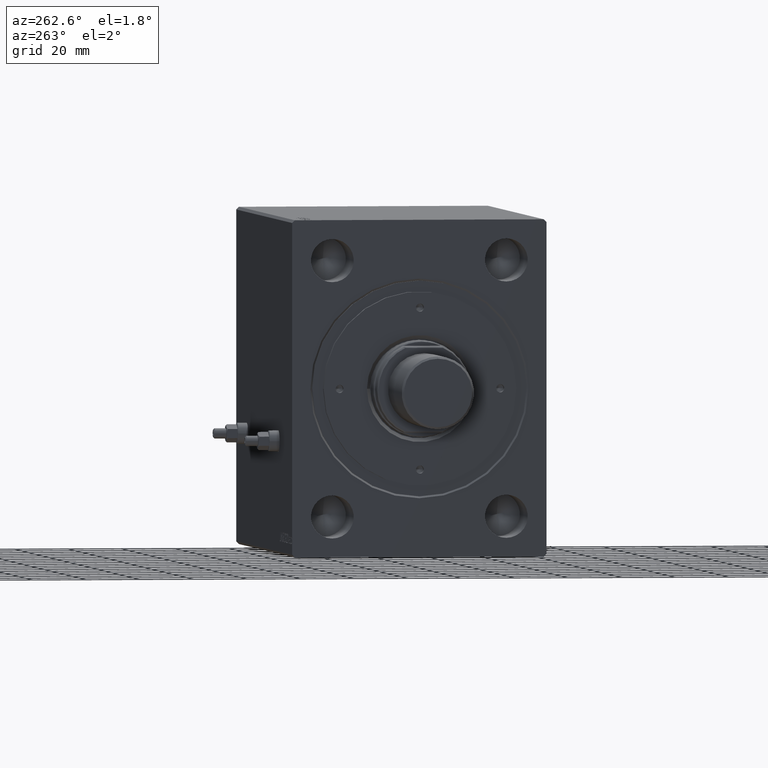
[diagram: clean part render]
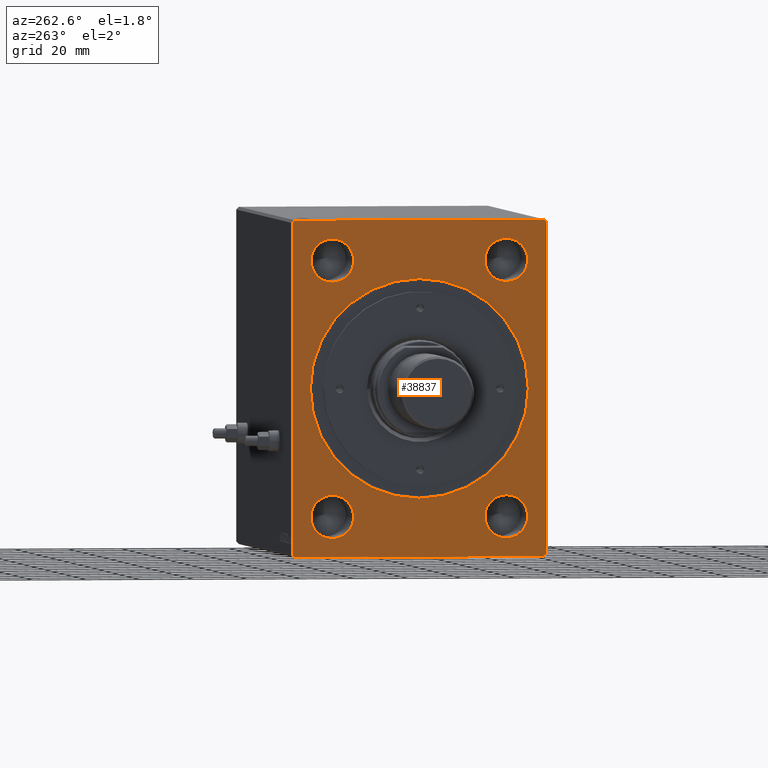
[diagram: same view with one face highlighted and labeled with its STEP entity id]
A machine part, auxiliary view. The second image highlights one B-rep face of the part: STEP entity #38837.
In plain terms, the highlighted planar face has unit normal (1, 0, 0).
Its self-contained STEP definition (entity closure, byte-faithful):
#24 = CARTESIAN_POINT ( 'NONE',  ( 4.898587196589409870E-16, -32.50000000000000000, -39.50000000000000711 ) ) ;
#631 = AXIS2_PLACEMENT_3D ( 'NONE', #31867, #10810, #3693 ) ;
#644 = CARTESIAN_POINT ( 'NONE',  ( 0.000000000000000000, 0.000000000000000000, 40.70000000000003837 ) ) ;
#741 = VECTOR ( 'NONE', #1376, 1000.000000000000114 ) ;
#939 = ORIENTED_EDGE ( 'NONE', *, *, #20241, .F. ) ;
#1376 = DIRECTION ( 'NONE',  ( 0.000000000000000000, -0.7071067811865474617, 0.7071067811865474617 ) ) ;
#1608 = AXIS2_PLACEMENT_3D ( 'NONE', #15627, #5542, #8047 ) ;
#1639 = ORIENTED_EDGE ( 'NONE', *, *, #10413, .F. ) ;
#1888 = CARTESIAN_POINT ( 'NONE',  ( 0.000000000000000000, -47.50000000000001421, 61.49999999999997868 ) ) ;
#1890 = VERTEX_POINT ( 'NONE', #22700 ) ;
#2073 = CARTESIAN_POINT ( 'NONE',  ( 0.000000000000000000, 47.50000000000000000, 61.49999999999998579 ) ) ;
#2105 = DIRECTION ( 'NONE',  ( 0.000000000000000000, -0.7071067811865474617, -0.7071067811865474617 ) ) ;
#2269 = DIRECTION ( 'NONE',  ( 0.000000000000000000, 0.000000000000000000, -1.000000000000000000 ) ) ;
#2356 = VERTEX_POINT ( 'NONE', #11422 ) ;
#2392 = EDGE_CURVE ( 'NONE', #45315, #8553, #37337, .T. ) ;
#2797 = CARTESIAN_POINT ( 'NONE',  ( 4.898587196589409870E-16, -32.50000000000000000, -55.50000000000000711 ) ) ;
#3347 = LINE ( 'NONE', #17331, #42863 ) ;
#3693 = DIRECTION ( 'NONE',  ( 0.000000000000000000, 0.000000000000000000, 1.000000000000000000 ) ) ;
#3744 = CARTESIAN_POINT ( 'NONE',  ( 0.000000000000000000, -47.50000000000001421, 61.49999999999997868 ) ) ;
#3792 = CARTESIAN_POINT ( 'NONE',  ( 4.898587196589409870E-16, -32.50000000000000000, -47.50000000000000711 ) ) ;
#4757 = CIRCLE ( 'NONE', #6983, 40.70000000000003837 ) ;
#5019 = ORIENTED_EDGE ( 'NONE', *, *, #38332, .F. ) ;
#5066 = EDGE_LOOP ( 'NONE', ( #36178, #39167 ) ) ;
#5128 = PLANE ( 'NONE',  #40322 ) ;
#5542 = DIRECTION ( 'NONE',  ( -1.000000000000000000, -0.000000000000000000, -0.000000000000000000 ) ) ;
#5556 = AXIS2_PLACEMENT_3D ( 'NONE', #41566, #23936, #30371 ) ;
#5697 = DIRECTION ( 'NONE',  ( 0.000000000000000000, -1.128275431529630729E-16, 1.000000000000000000 ) ) ;
#5759 = AXIS2_PLACEMENT_3D ( 'NONE', #20375, #30906, #2269 ) ;
#6024 = CARTESIAN_POINT ( 'NONE',  ( 0.000000000000000000, -46.50000000000001421, 62.49999999999997868 ) ) ;
#6193 = VERTEX_POINT ( 'NONE', #23164 ) ;
#6288 = VERTEX_POINT ( 'NONE', #644 ) ;
#6504 = EDGE_LOOP ( 'NONE', ( #35552, #20938, #28442, #28223, #19460, #36465, #5019, #13929 ) ) ;
#6557 = DIRECTION ( 'NONE',  ( -1.000000000000000000, -0.000000000000000000, -0.000000000000000000 ) ) ;
#6983 = AXIS2_PLACEMENT_3D ( 'NONE', #22130, #14811, #43452 ) ;
#7312 = EDGE_LOOP ( 'NONE', ( #18282, #36783 ) ) ;
#7445 = EDGE_CURVE ( 'NONE', #19935, #6288, #4757, .T. ) ;
#7846 = DIRECTION ( 'NONE',  ( 0.000000000000000000, 0.7071067811865451302, -0.7071067811865500152 ) ) ;
#8047 = DIRECTION ( 'NONE',  ( 0.000000000000000000, 0.000000000000000000, 1.000000000000000000 ) ) ;
#8077 = LINE ( 'NONE', #22056, #40853 ) ;
#8105 = EDGE_LOOP ( 'NONE', ( #1639, #9164 ) ) ;
#8553 = VERTEX_POINT ( 'NONE', #22601 ) ;
#8920 = CARTESIAN_POINT ( 'NONE',  ( 4.898587196589409870E-16, 32.50000000000000000, 47.50000000000000000 ) ) ;
#9164 = ORIENTED_EDGE ( 'NONE', *, *, #25642, .F. ) ;
#9365 = VERTEX_POINT ( 'NONE', #19139 ) ;
#9406 = EDGE_CURVE ( 'NONE', #34900, #18358, #13607, .T. ) ;
#10413 = EDGE_CURVE ( 'NONE', #40140, #42333, #16577, .T. ) ;
#10465 = EDGE_CURVE ( 'NONE', #25899, #1890, #3347, .T. ) ;
#10810 = DIRECTION ( 'NONE',  ( -1.000000000000000000, -0.000000000000000000, -0.000000000000000000 ) ) ;
#11422 = CARTESIAN_POINT ( 'NONE',  ( 4.898587196589409870E-16, 32.50000000000000000, 39.50000000000000711 ) ) ;
#11771 = CARTESIAN_POINT ( 'NONE',  ( 0.000000000000000000, -46.50000000000000000, -62.50000000000001421 ) ) ;
#11775 = DIRECTION ( 'NONE',  ( -1.000000000000000000, -0.000000000000000000, -0.000000000000000000 ) ) ;
#12010 = DIRECTION ( 'NONE',  ( 0.000000000000000000, 0.000000000000000000, 1.000000000000000000 ) ) ;
#12788 = LINE ( 'NONE', #26748, #21922 ) ;
#12811 = CARTESIAN_POINT ( 'NONE',  ( 4.898587196589409870E-16, 32.50000000000000000, 55.49999999999999289 ) ) ;
#13217 = AXIS2_PLACEMENT_3D ( 'NONE', #15806, #44672, #29771 ) ;
#13324 = CIRCLE ( 'NONE', #29404, 8.000000000000000000 ) ;
#13607 = CIRCLE ( 'NONE', #5556, 7.999999999999992895 ) ;
#13897 = VERTEX_POINT ( 'NONE', #40285 ) ;
#13929 = ORIENTED_EDGE ( 'NONE', *, *, #10465, .F. ) ;
#14502 = CIRCLE ( 'NONE', #37916, 7.999999999999992895 ) ;
#14759 = CIRCLE ( 'NONE', #1608, 7.999999999999992895 ) ;
#14806 = EDGE_CURVE ( 'NONE', #6193, #16414, #8077, .T. ) ;
#14811 = DIRECTION ( 'NONE',  ( 1.000000000000000000, 0.000000000000000000, 0.000000000000000000 ) ) ;
#15451 = FACE_BOUND ( 'NONE', #7312, .T. ) ;
#15627 = CARTESIAN_POINT ( 'NONE',  ( 4.898587196589409870E-16, -32.50000000000000000, 47.50000000000000000 ) ) ;
#15806 = CARTESIAN_POINT ( 'NONE',  ( 4.898587196589409870E-16, 32.50000000000000000, -47.50000000000000000 ) ) ;
#16414 = VERTEX_POINT ( 'NONE', #11771 ) ;
#16577 = CIRCLE ( 'NONE', #17281, 8.000000000000000000 ) ;
#17281 = AXIS2_PLACEMENT_3D ( 'NONE', #3792, #28081, #17783 ) ;
#17331 = CARTESIAN_POINT ( 'NONE',  ( 0.000000000000000000, 46.50000000000000000, 62.49999999999998579 ) ) ;
#17783 = DIRECTION ( 'NONE',  ( 0.000000000000000000, 0.000000000000000000, 1.000000000000000000 ) ) ;
#17839 = VECTOR ( 'NONE', #5697, 1000.000000000000000 ) ;
#18189 = FACE_BOUND ( 'NONE', #30516, .T. ) ;
#18282 = ORIENTED_EDGE ( 'NONE', *, *, #31697, .F. ) ;
#18358 = VERTEX_POINT ( 'NONE', #42243 ) ;
#18417 = EDGE_CURVE ( 'NONE', #41058, #6193, #20956, .T. ) ;
#18639 = CARTESIAN_POINT ( 'NONE',  ( 4.898587196589409870E-16, 32.50000000000000000, 47.50000000000000000 ) ) ;
#19139 = CARTESIAN_POINT ( 'NONE',  ( 0.000000000000000000, 46.50000000000000000, -62.50000000000000000 ) ) ;
#19434 = DIRECTION ( 'NONE',  ( 0.000000000000000000, 0.7071067811865574537, 0.7071067811865376918 ) ) ;
#19460 = ORIENTED_EDGE ( 'NONE', *, *, #14806, .F. ) ;
#19801 = VECTOR ( 'NONE', #2105, 1000.000000000000114 ) ;
#19935 = VERTEX_POINT ( 'NONE', #35718 ) ;
#20241 = EDGE_CURVE ( 'NONE', #22372, #13897, #21131, .T. ) ;
#20335 = DIRECTION ( 'NONE',  ( 0.000000000000000000, -1.000000000000000000, -7.461176240760460157E-17 ) ) ;
#20375 = CARTESIAN_POINT ( 'NONE',  ( 0.000000000000000000, 0.000000000000000000, 0.000000000000000000 ) ) ;
#20938 = ORIENTED_EDGE ( 'NONE', *, *, #2392, .F. ) ;
#20956 = LINE ( 'NONE', #3744, #30601 ) ;
#21131 = CIRCLE ( 'NONE', #631, 7.999999999999992895 ) ;
#21431 = VERTEX_POINT ( 'NONE', #12811 ) ;
#21749 = CARTESIAN_POINT ( 'NONE',  ( 0.000000000000000000, -46.50000000000000000, -62.50000000000001421 ) ) ;
#21828 = DIRECTION ( 'NONE',  ( 0.000000000000000000, 1.692413147294445970E-16, -1.000000000000000000 ) ) ;
#21922 = VECTOR ( 'NONE', #19434, 999.9999999999998863 ) ;
#22056 = CARTESIAN_POINT ( 'NONE',  ( 0.000000000000000000, -47.49999999999999289, -61.50000000000001421 ) ) ;
#22130 = CARTESIAN_POINT ( 'NONE',  ( 0.000000000000000000, 0.000000000000000000, 0.000000000000000000 ) ) ;
#22372 = VERTEX_POINT ( 'NONE', #27896 ) ;
#22601 = CARTESIAN_POINT ( 'NONE',  ( 0.000000000000000000, 47.50000000000000000, 61.49999999999998579 ) ) ;
#22700 = CARTESIAN_POINT ( 'NONE',  ( 0.000000000000000000, -46.50000000000001421, 62.49999999999997868 ) ) ;
#23164 = CARTESIAN_POINT ( 'NONE',  ( 0.000000000000000000, -47.49999999999999289, -61.50000000000001421 ) ) ;
#23347 = EDGE_CURVE ( 'NONE', #9365, #45315, #12788, .T. ) ;
#23936 = DIRECTION ( 'NONE',  ( -1.000000000000000000, -0.000000000000000000, -0.000000000000000000 ) ) ;
#24558 = CARTESIAN_POINT ( 'NONE',  ( 4.898587196589409870E-16, -32.50000000000000000, 55.49999999999999289 ) ) ;
#25179 = DIRECTION ( 'NONE',  ( 0.000000000000000000, 0.000000000000000000, 1.000000000000000000 ) ) ;
#25499 = EDGE_CURVE ( 'NONE', #18358, #34900, #14759, .T. ) ;
#25642 = EDGE_CURVE ( 'NONE', #42333, #40140, #13324, .T. ) ;
#25770 = ORIENTED_EDGE ( 'NONE', *, *, #25499, .F. ) ;
#25899 = VERTEX_POINT ( 'NONE', #35950 ) ;
#26734 = EDGE_CURVE ( 'NONE', #16414, #9365, #41950, .T. ) ;
#26748 = CARTESIAN_POINT ( 'NONE',  ( 0.000000000000000000, 46.50000000000000000, -62.50000000000000000 ) ) ;
#26771 = CARTESIAN_POINT ( 'NONE',  ( 0.000000000000000000, 47.50000000000001421, -61.50000000000001421 ) ) ;
#27692 = CARTESIAN_POINT ( 'NONE',  ( 0.000000000000000000, 47.50000000000001421, -61.50000000000001421 ) ) ;
#27896 = CARTESIAN_POINT ( 'NONE',  ( 4.898587196589409870E-16, 32.50000000000000000, -55.49999999999999289 ) ) ;
#28081 = DIRECTION ( 'NONE',  ( -1.000000000000000000, -0.000000000000000000, -0.000000000000000000 ) ) ;
#28125 = EDGE_LOOP ( 'NONE', ( #32052, #25770 ) ) ;
#28223 = ORIENTED_EDGE ( 'NONE', *, *, #26734, .F. ) ;
#28442 = ORIENTED_EDGE ( 'NONE', *, *, #23347, .F. ) ;
#28944 = FACE_BOUND ( 'NONE', #28125, .T. ) ;
#29174 = FACE_BOUND ( 'NONE', #8105, .T. ) ;
#29404 = AXIS2_PLACEMENT_3D ( 'NONE', #45152, #35068, #25179 ) ;
#29409 = CARTESIAN_POINT ( 'NONE',  ( 0.000000000000000000, 0.000000000000000000, 0.000000000000000000 ) ) ;
#29771 = DIRECTION ( 'NONE',  ( 0.000000000000000000, 0.000000000000000000, 1.000000000000000000 ) ) ;
#29889 = CIRCLE ( 'NONE', #5759, 40.70000000000003837 ) ;
#30371 = DIRECTION ( 'NONE',  ( 0.000000000000000000, 0.000000000000000000, 1.000000000000000000 ) ) ;
#30516 = EDGE_LOOP ( 'NONE', ( #35957, #939 ) ) ;
#30601 = VECTOR ( 'NONE', #21828, 1000.000000000000000 ) ;
#30906 = DIRECTION ( 'NONE',  ( 1.000000000000000000, 0.000000000000000000, 0.000000000000000000 ) ) ;
#31697 = EDGE_CURVE ( 'NONE', #21431, #2356, #14502, .T. ) ;
#31867 = CARTESIAN_POINT ( 'NONE',  ( 4.898587196589409870E-16, 32.50000000000000000, -47.50000000000000000 ) ) ;
#31936 = DIRECTION ( 'NONE',  ( 1.000000000000000000, 0.000000000000000000, 0.000000000000000000 ) ) ;
#32052 = ORIENTED_EDGE ( 'NONE', *, *, #9406, .F. ) ;
#33275 = EDGE_CURVE ( 'NONE', #6288, #19935, #29889, .T. ) ;
#34900 = VERTEX_POINT ( 'NONE', #24558 ) ;
#35068 = DIRECTION ( 'NONE',  ( -1.000000000000000000, -0.000000000000000000, -0.000000000000000000 ) ) ;
#35117 = CIRCLE ( 'NONE', #40983, 7.999999999999992895 ) ;
#35552 = ORIENTED_EDGE ( 'NONE', *, *, #43252, .F. ) ;
#35718 = CARTESIAN_POINT ( 'NONE',  ( 0.000000000000000000, 4.984312472529732047E-15, -40.70000000000003837 ) ) ;
#35738 = DIRECTION ( 'NONE',  ( 0.000000000000000000, 1.000000000000000000, 1.492235248152092278E-16 ) ) ;
#35950 = CARTESIAN_POINT ( 'NONE',  ( 0.000000000000000000, 46.50000000000000000, 62.49999999999998579 ) ) ;
#35957 = ORIENTED_EDGE ( 'NONE', *, *, #38531, .F. ) ;
#36178 = ORIENTED_EDGE ( 'NONE', *, *, #33275, .T. ) ;
#36406 = DIRECTION ( 'NONE',  ( 0.000000000000000000, 0.000000000000000000, 1.000000000000000000 ) ) ;
#36465 = ORIENTED_EDGE ( 'NONE', *, *, #18417, .F. ) ;
#36783 = ORIENTED_EDGE ( 'NONE', *, *, #36949, .F. ) ;
#36949 = EDGE_CURVE ( 'NONE', #2356, #21431, #35117, .T. ) ;
#37337 = LINE ( 'NONE', #26771, #17839 ) ;
#37916 = AXIS2_PLACEMENT_3D ( 'NONE', #18639, #11775, #12010 ) ;
#38332 = EDGE_CURVE ( 'NONE', #1890, #41058, #40845, .T. ) ;
#38531 = EDGE_CURVE ( 'NONE', #13897, #22372, #41018, .T. ) ;
#38837 = ADVANCED_FACE ( 'NONE', ( #15451, #29174, #18189, #28944, #42483, #43163 ), #5128, .F. ) ;
#39167 = ORIENTED_EDGE ( 'NONE', *, *, #7445, .T. ) ;
#39972 = DIRECTION ( 'NONE',  ( 0.000000000000000000, 0.000000000000000000, -1.000000000000000000 ) ) ;
#40140 = VERTEX_POINT ( 'NONE', #24 ) ;
#40285 = CARTESIAN_POINT ( 'NONE',  ( 4.898587196589409870E-16, 32.50000000000000000, -39.50000000000000711 ) ) ;
#40322 = AXIS2_PLACEMENT_3D ( 'NONE', #29409, #31936, #39972 ) ;
#40845 = LINE ( 'NONE', #6024, #19801 ) ;
#40853 = VECTOR ( 'NONE', #7846, 1000.000000000000114 ) ;
#40983 = AXIS2_PLACEMENT_3D ( 'NONE', #8920, #6557, #36406 ) ;
#41018 = CIRCLE ( 'NONE', #13217, 7.999999999999992895 ) ;
#41058 = VERTEX_POINT ( 'NONE', #1888 ) ;
#41566 = CARTESIAN_POINT ( 'NONE',  ( 4.898587196589409870E-16, -32.50000000000000000, 47.50000000000000000 ) ) ;
#41950 = LINE ( 'NONE', #21749, #44091 ) ;
#42243 = CARTESIAN_POINT ( 'NONE',  ( 4.898587196589409870E-16, -32.50000000000000000, 39.50000000000000711 ) ) ;
#42333 = VERTEX_POINT ( 'NONE', #2797 ) ;
#42483 = FACE_BOUND ( 'NONE', #5066, .T. ) ;
#42863 = VECTOR ( 'NONE', #20335, 1000.000000000000000 ) ;
#43163 = FACE_OUTER_BOUND ( 'NONE', #6504, .T. ) ;
#43252 = EDGE_CURVE ( 'NONE', #8553, #25899, #44011, .T. ) ;
#43452 = DIRECTION ( 'NONE',  ( 0.000000000000000000, 0.000000000000000000, -1.000000000000000000 ) ) ;
#44011 = LINE ( 'NONE', #2073, #741 ) ;
#44091 = VECTOR ( 'NONE', #35738, 1000.000000000000000 ) ;
#44672 = DIRECTION ( 'NONE',  ( -1.000000000000000000, -0.000000000000000000, -0.000000000000000000 ) ) ;
#45152 = CARTESIAN_POINT ( 'NONE',  ( 4.898587196589409870E-16, -32.50000000000000000, -47.50000000000000711 ) ) ;
#45315 = VERTEX_POINT ( 'NONE', #27692 ) ;